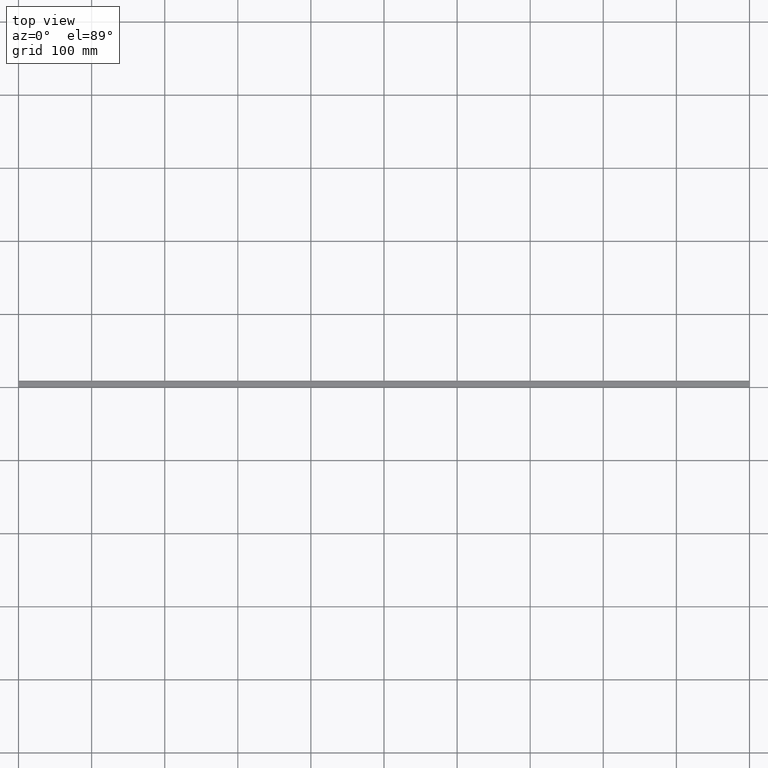
[diagram: clean part render]
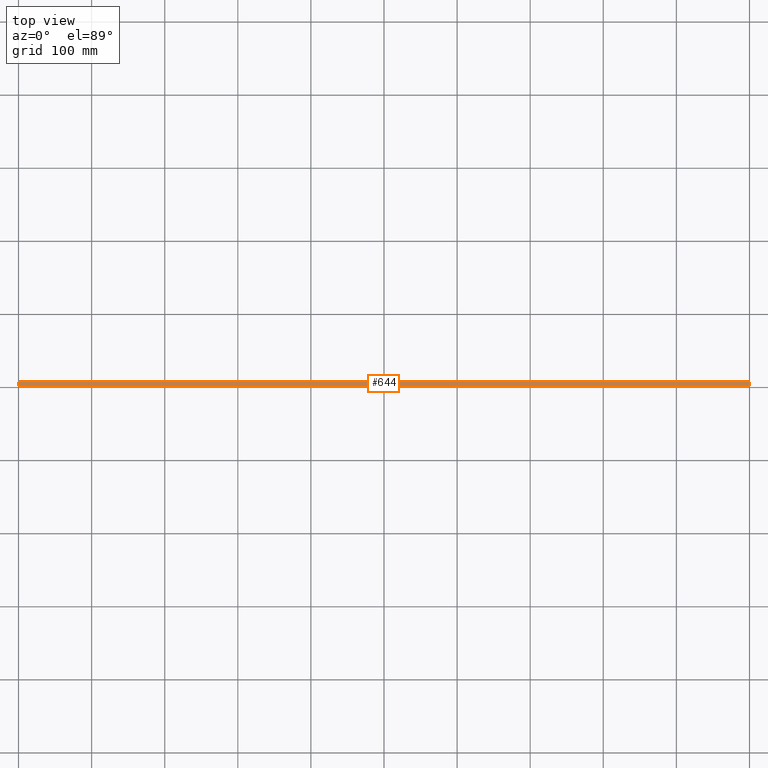
[diagram: same view with one face highlighted and labeled with its STEP entity id]
A machine part, top view. The second image highlights one B-rep face of the part: STEP entity #644.
In plain terms, the highlighted planar face has unit normal (0, 0, -1).
Its self-contained STEP definition (entity closure, byte-faithful):
#53 = EDGE_LOOP ( 'NONE', ( #138, #106, #98, #130 ) ) ;
#98 = ORIENTED_EDGE ( 'NONE', *, *, #628, .F. ) ;
#106 = ORIENTED_EDGE ( 'NONE', *, *, #604, .F. ) ;
#115 = VERTEX_POINT ( 'NONE', #238 ) ;
#116 = VERTEX_POINT ( 'NONE', #230 ) ;
#128 = VERTEX_POINT ( 'NONE', #270 ) ;
#130 = ORIENTED_EDGE ( 'NONE', *, *, #581, .T. ) ;
#131 = VERTEX_POINT ( 'NONE', #243 ) ;
#138 = ORIENTED_EDGE ( 'NONE', *, *, #622, .T. ) ;
#230 = CARTESIAN_POINT ( 'NONE',  ( 1000.000000000000000, 0.9999999999998900900, 27.29999999999993700 ) ) ;
#238 = CARTESIAN_POINT ( 'NONE',  ( 0.0000000000000000000, 0.9999999999998900900, 27.29999999999993700 ) ) ;
#243 = CARTESIAN_POINT ( 'NONE',  ( 1000.000000000000000, 6.731207326816646100, 27.29999999999988000 ) ) ;
#270 = CARTESIAN_POINT ( 'NONE',  ( 0.0000000000000000000, 6.731207326816646100, 27.29999999999988000 ) ) ;
#336 = CARTESIAN_POINT ( 'NONE',  ( 1000.000000000000000, 6.731207326816646100, 27.29999999999988000 ) ) ;
#357 = LINE ( 'NONE', #336, #680 ) ;
#358 = DIRECTION ( 'NONE',  ( -1.000000000000000000, -0.0000000000000000000, -0.0000000000000000000 ) ) ;
#380 = CARTESIAN_POINT ( 'NONE',  ( 1000.000000000000000, 0.9999999999998900900, 27.29999999999993700 ) ) ;
#398 = DIRECTION ( 'NONE',  ( -1.000000000000000000, -0.0000000000000000000, -0.0000000000000000000 ) ) ;
#403 = LINE ( 'NONE', #380, #706 ) ;
#422 = CARTESIAN_POINT ( 'NONE',  ( 0.0000000000000000000, 6.731207326816646100, 27.29999999999988000 ) ) ;
#434 = DIRECTION ( 'NONE',  ( 0.0000000000000000000, -1.000000000000000000, 0.0000000000000000000 ) ) ;
#435 = LINE ( 'NONE', #438, #738 ) ;
#438 = CARTESIAN_POINT ( 'NONE',  ( 1000.000000000000000, 6.731207326816646100, 27.29999999999988000 ) ) ;
#456 = LINE ( 'NONE', #422, #720 ) ;
#483 = DIRECTION ( 'NONE',  ( 0.0000000000000000000, -1.000000000000000000, 0.0000000000000000000 ) ) ;
#513 = DIRECTION ( 'NONE',  ( -1.000000000000000000, 0.0000000000000000000, -0.0000000000000000000 ) ) ;
#526 = PLANE ( 'NONE',  #744 ) ;
#538 = DIRECTION ( 'NONE',  ( 0.0000000000000000000, 0.0000000000000000000, -1.000000000000000000 ) ) ;
#540 = FACE_OUTER_BOUND ( 'NONE', #53, .T. ) ;
#544 = CARTESIAN_POINT ( 'NONE',  ( 1000.000000000000000, 6.731207326816646100, 27.29999999999988000 ) ) ;
#581 = EDGE_CURVE ( 'NONE', #131, #128, #357, .T. ) ;
#604 = EDGE_CURVE ( 'NONE', #116, #115, #403, .T. ) ;
#622 = EDGE_CURVE ( 'NONE', #128, #115, #456, .T. ) ;
#628 = EDGE_CURVE ( 'NONE', #131, #116, #435, .T. ) ;
#644 = ADVANCED_FACE ( 'NONE', ( #540 ), #526, .F. ) ;
#680 = VECTOR ( 'NONE', #358, 1000.000000000000000 ) ;
#706 = VECTOR ( 'NONE', #398, 1000.000000000000000 ) ;
#720 = VECTOR ( 'NONE', #434, 1000.000000000000000 ) ;
#738 = VECTOR ( 'NONE', #483, 1000.000000000000000 ) ;
#744 = AXIS2_PLACEMENT_3D ( 'NONE', #544, #538, #513 ) ;